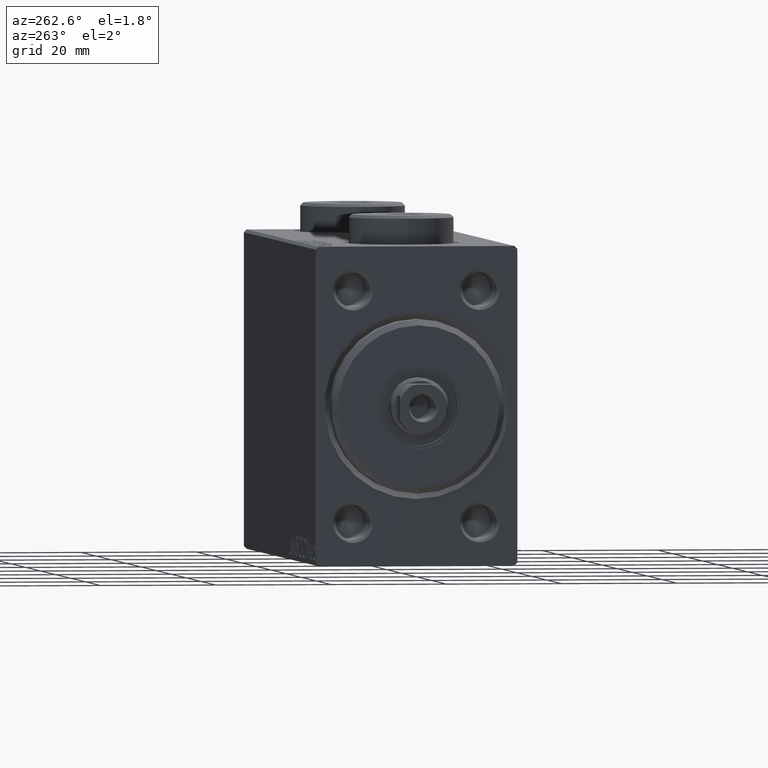
[diagram: clean part render]
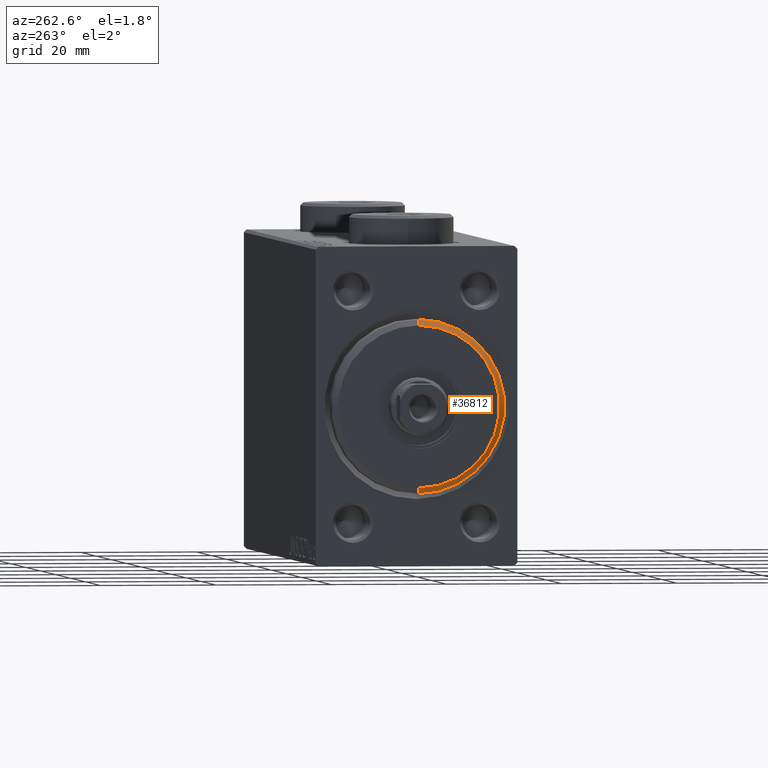
[diagram: same view with one face highlighted and labeled with its STEP entity id]
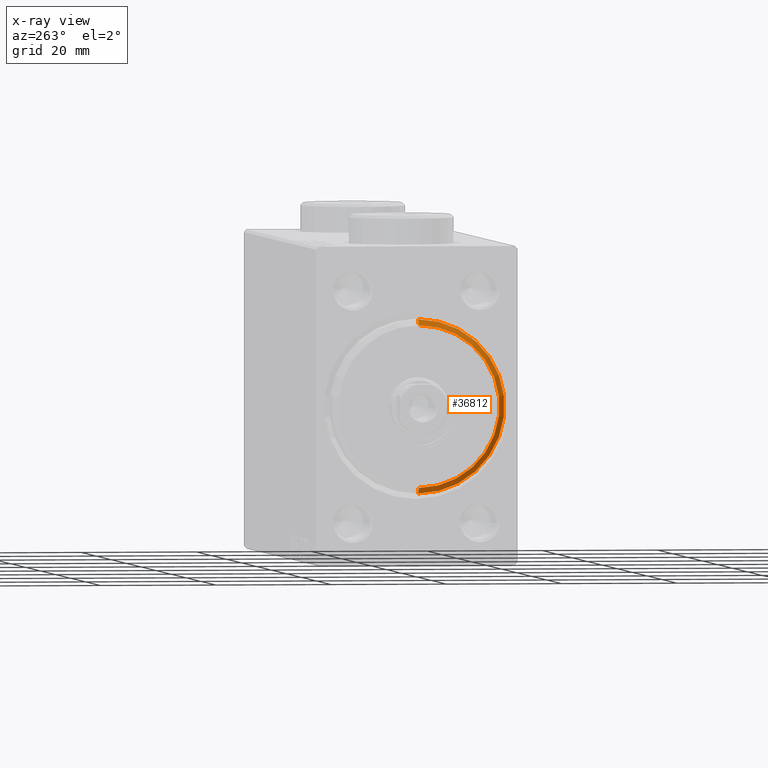
[diagram: x-ray of the same camera — body ghosted, the highlighted face saturated]
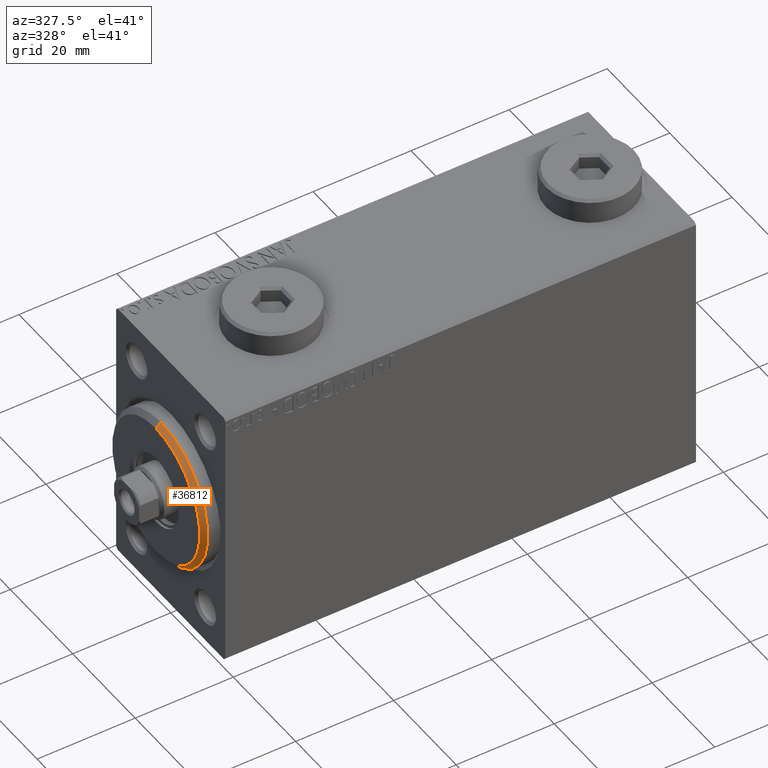
[diagram: same view with one face highlighted and labeled with its STEP entity id]
A machine part, auxiliary view. The second image highlights one B-rep face of the part: STEP entity #36812.
The next image is the same camera in x-ray: the body ghosted, the highlighted face saturated — about 0% of this face is hidden behind the body in this view.
A second angle (auxiliary view) of the same face is appended — the face is thin or edge-on in the first view.
In plain terms, the highlighted conical surface has half-angle 45 deg.
Its self-contained STEP definition (entity closure, byte-faithful):
#1312 = VERTEX_POINT ( 'NONE', #8778 ) ;
#4102 = CARTESIAN_POINT ( 'NONE',  ( 3.000000000000000000, 0.000000000000000000, 13.99999999999999645 ) ) ;
#4821 = CIRCLE ( 'NONE', #35006, 13.99999999999999645 ) ;
#5929 = VECTOR ( 'NONE', #42768, 999.9999999999998863 ) ;
#6637 = DIRECTION ( 'NONE',  ( 0.000000000000000000, 0.000000000000000000, -1.000000000000000000 ) ) ;
#6916 = CARTESIAN_POINT ( 'NONE',  ( 1.999999999999995781, 1.836970198721029589E-15, -15.00000000000000000 ) ) ;
#7567 = DIRECTION ( 'NONE',  ( 0.000000000000000000, 0.000000000000000000, 1.000000000000000000 ) ) ;
#8778 = CARTESIAN_POINT ( 'NONE',  ( 1.999999999999995781, 0.000000000000000000, 15.00000000000000000 ) ) ;
#10863 = CARTESIAN_POINT ( 'NONE',  ( 3.000000000000000000, 1.714505518806294244E-15, -13.99999999999999645 ) ) ;
#11000 = ORIENTED_EDGE ( 'NONE', *, *, #11309, .F. ) ;
#11309 = EDGE_CURVE ( 'NONE', #29269, #16074, #4821, .T. ) ;
#13858 = LINE ( 'NONE', #10863, #23488 ) ;
#13969 = AXIS2_PLACEMENT_3D ( 'NONE', #25070, #14672, #7567 ) ;
#14672 = DIRECTION ( 'NONE',  ( -1.000000000000000000, 0.000000000000000000, 0.000000000000000000 ) ) ;
#14831 = ORIENTED_EDGE ( 'NONE', *, *, #20944, .F. ) ;
#14894 = LINE ( 'NONE', #4102, #5929 ) ;
#15820 = CARTESIAN_POINT ( 'NONE',  ( 3.000000000000000000, 0.000000000000000000, 13.99999999999999645 ) ) ;
#16074 = VERTEX_POINT ( 'NONE', #15820 ) ;
#16589 = VERTEX_POINT ( 'NONE', #6916 ) ;
#18595 = CARTESIAN_POINT ( 'NONE',  ( 1.999999999999995781, 0.000000000000000000, 0.000000000000000000 ) ) ;
#18930 = AXIS2_PLACEMENT_3D ( 'NONE', #18595, #43686, #29677 ) ;
#20944 = EDGE_CURVE ( 'NONE', #1312, #16589, #43934, .T. ) ;
#23488 = VECTOR ( 'NONE', #28162, 999.9999999999998863 ) ;
#24742 = ORIENTED_EDGE ( 'NONE', *, *, #38635, .F. ) ;
#25070 = CARTESIAN_POINT ( 'NONE',  ( 3.000000000000000000, 0.000000000000000000, 0.000000000000000000 ) ) ;
#25775 = CONICAL_SURFACE ( 'NONE', #13969, 13.99999999999999645, 0.7853981633974473908 ) ;
#28162 = DIRECTION ( 'NONE',  ( -0.7071067811865482389, 8.659560562354926695E-17, -0.7071067811865469066 ) ) ;
#29269 = VERTEX_POINT ( 'NONE', #43739 ) ;
#29677 = DIRECTION ( 'NONE',  ( 0.000000000000000000, 0.000000000000000000, -1.000000000000000000 ) ) ;
#30855 = ORIENTED_EDGE ( 'NONE', *, *, #34939, .T. ) ;
#34939 = EDGE_CURVE ( 'NONE', #29269, #16589, #13858, .T. ) ;
#35006 = AXIS2_PLACEMENT_3D ( 'NONE', #38177, #44391, #6637 ) ;
#36812 = ADVANCED_FACE ( 'NONE', ( #42542 ), #25775, .T. ) ;
#38177 = CARTESIAN_POINT ( 'NONE',  ( 3.000000000000000000, 0.000000000000000000, 0.000000000000000000 ) ) ;
#38635 = EDGE_CURVE ( 'NONE', #16074, #1312, #14894, .T. ) ;
#42542 = FACE_OUTER_BOUND ( 'NONE', #44059, .T. ) ;
#42768 = DIRECTION ( 'NONE',  ( -0.7071067811865482389, 0.000000000000000000, 0.7071067811865469066 ) ) ;
#43686 = DIRECTION ( 'NONE',  ( -1.000000000000000000, 0.000000000000000000, 0.000000000000000000 ) ) ;
#43739 = CARTESIAN_POINT ( 'NONE',  ( 3.000000000000000000, 1.775737858763662015E-15, -13.99999999999999645 ) ) ;
#43934 = CIRCLE ( 'NONE', #18930, 15.00000000000000000 ) ;
#44059 = EDGE_LOOP ( 'NONE', ( #11000, #30855, #14831, #24742 ) ) ;
#44391 = DIRECTION ( 'NONE',  ( 1.000000000000000000, -0.000000000000000000, 0.000000000000000000 ) ) ;